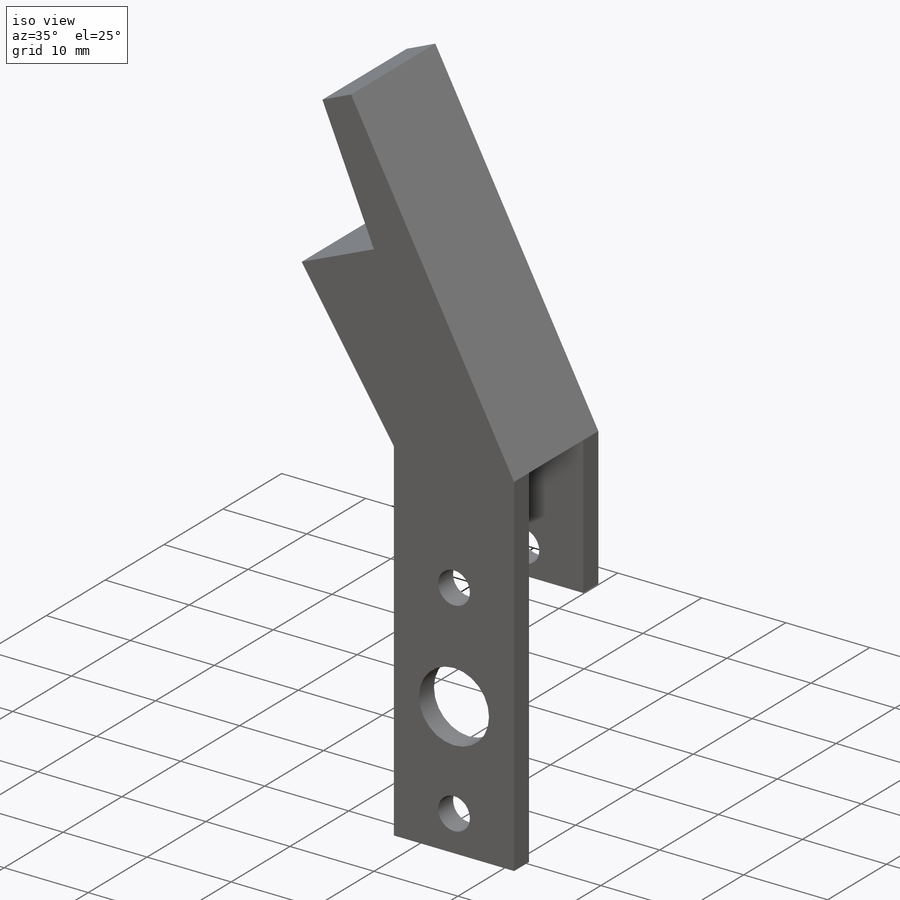
[diagram: iso view]
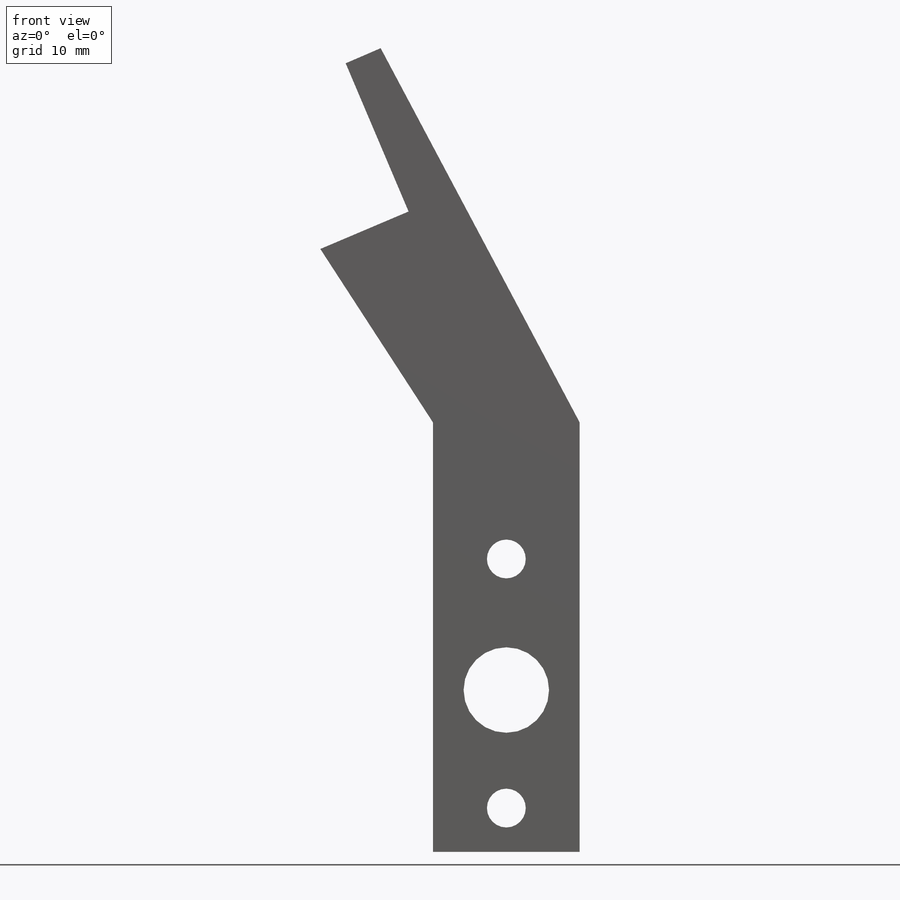
[diagram: front view]
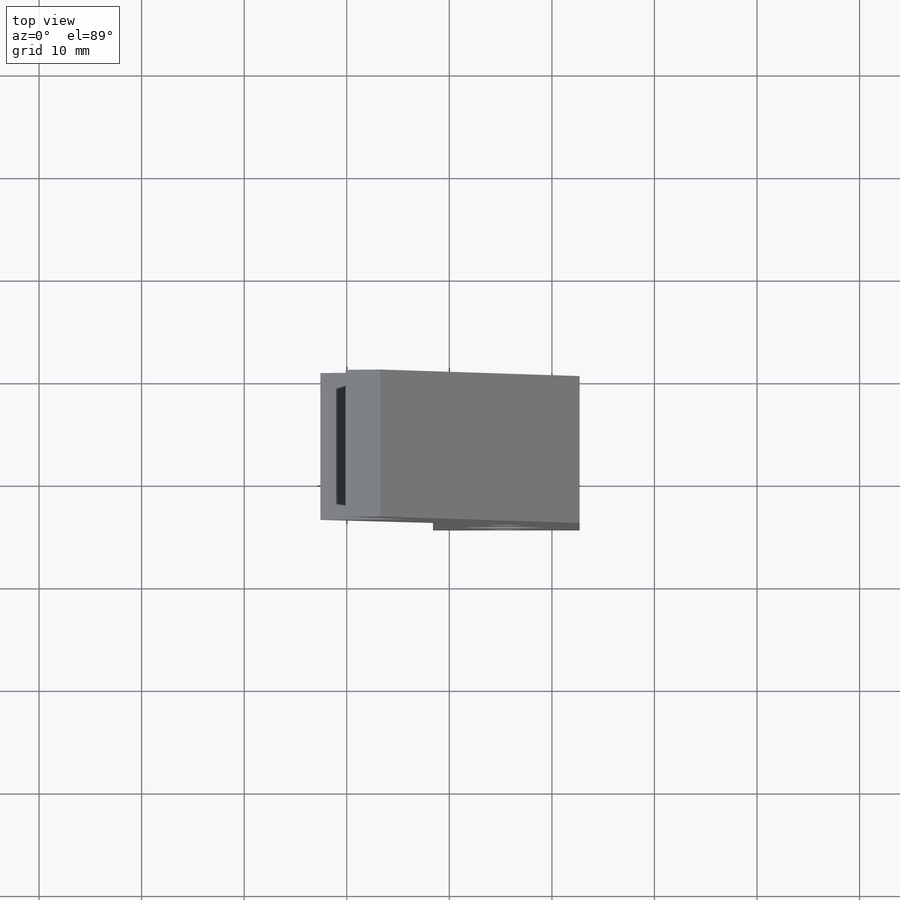
[diagram: top view]
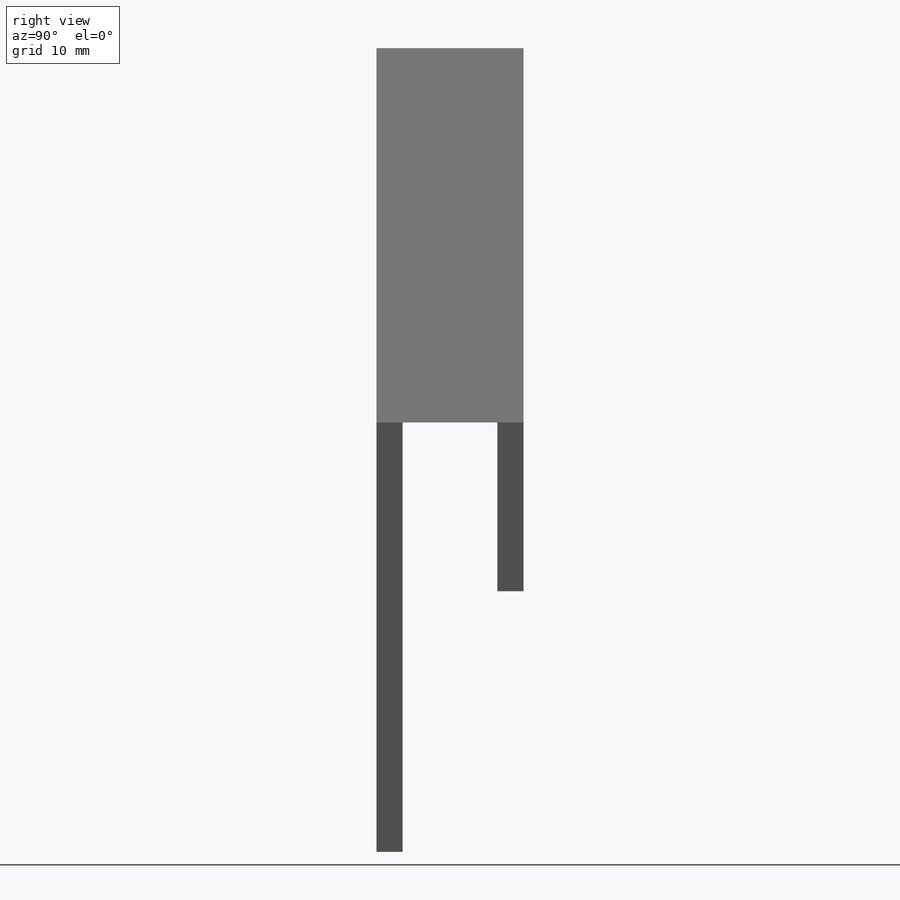
[diagram: right view]
SOLIDWORKS PART (.sldprt)
format: sldprt  version: not decoded by parser v0  size: 164,352 bytes
history: native  units: mm
features: sketch x4, cut_extrude x3, material x1, extrude x1, plane x1 (+12 scaffold rows collapsed)
feature tree (22):
  scaffold x12  (default folders/planes/origin — collapsed)
  material  "Material <not specified>"
  sketch  "Sketch1"  dims[c1.D1=41.8592mm c2.D1=0.0deg c3.D1=15.6972mm c4.D1=350.0deg c5.D1=20.1676mm c6.D1=247.0deg c7.D1=41.3258mm c8.D1=118.0deg]
  extrude  "Boss-Extrude2"  Depth=14.3256mm
  sketch  "Sketch3"  dims[D1=2.54mm]
  cut_extrude  "Cut-Extrude1"  Depth=14.3256mm
  plane  "Plane1"
  sketch  "Sketch5"  dims[D1=16.4592mm]
  cut_extrude  "Cut-Extrude2"  Depth=14.3256mm
  sketch  "Sketch6"  dims[D1=12.7762mm]
  cut_extrude  "Cut-Extrude3"  Depth=14.3256mm
decode coverage: 8 of 8 modeling features carry decoded parameters
note: suppression state not decoded; provenance and decode notes live in map.json
